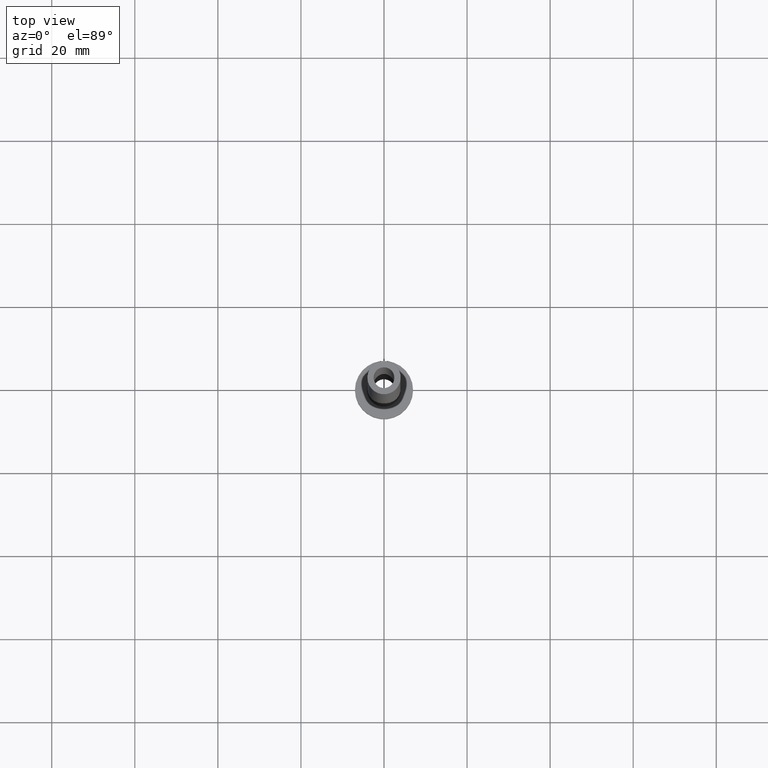
[diagram: clean part render]
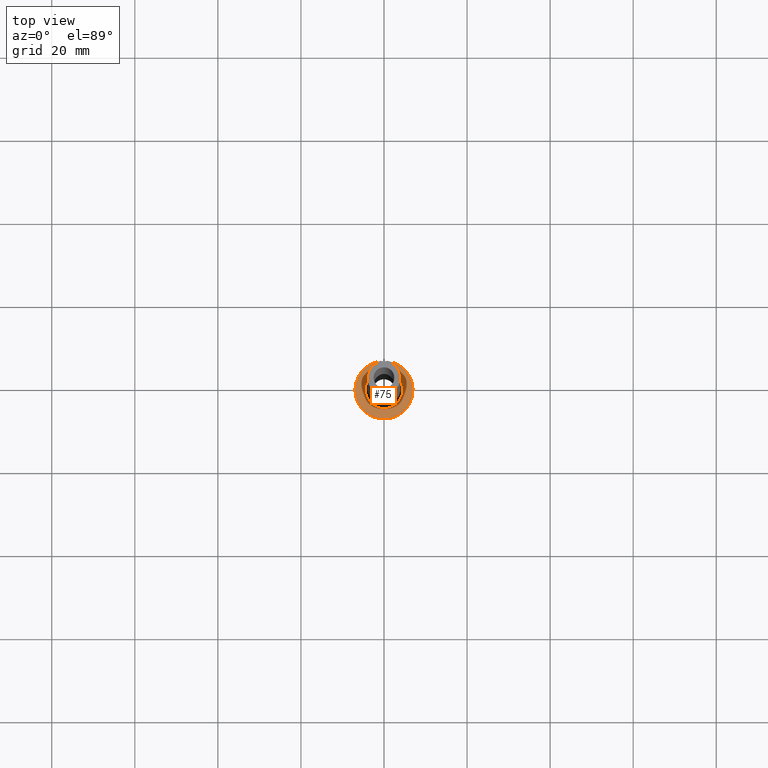
[diagram: same view with one face highlighted and labeled with its STEP entity id]
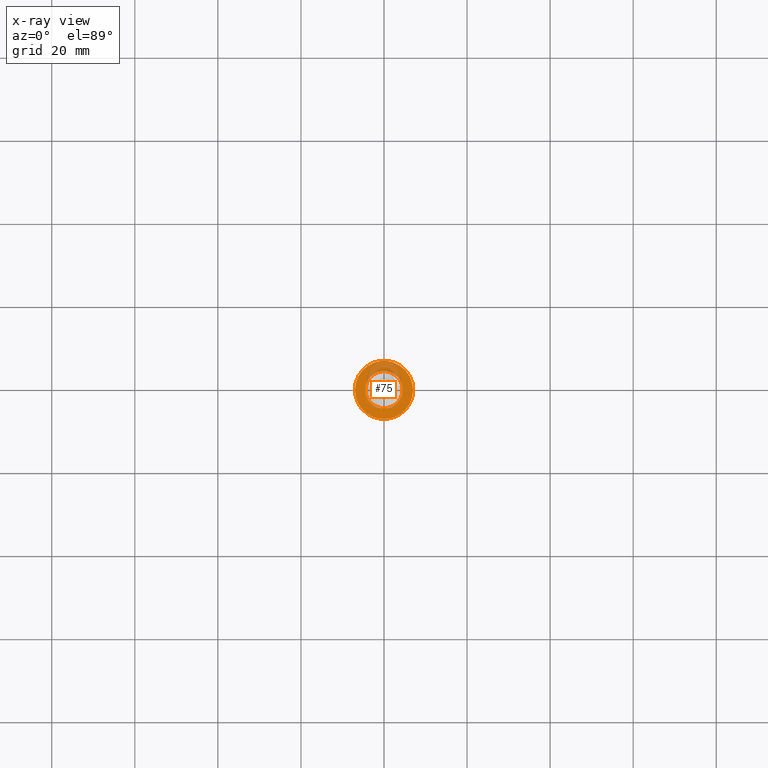
[diagram: x-ray of the same camera — body ghosted, the highlighted face saturated]
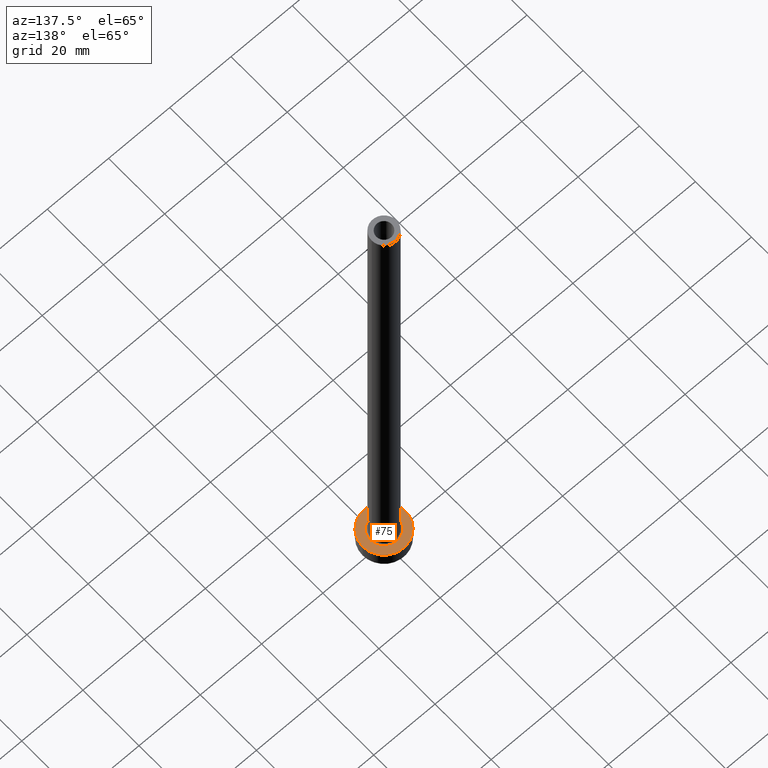
[diagram: same view with one face highlighted and labeled with its STEP entity id]
A machine part, top view. The second image highlights one B-rep face of the part: STEP entity #75.
The next image is the same camera in x-ray: the body ghosted, the highlighted face saturated — about 20% of this face is hidden behind the body in this view.
A second angle (auxiliary view) of the same face is appended — the face is thin or edge-on in the first view.
In plain terms, the highlighted planar face has unit normal (0, 0, 1).
Its self-contained STEP definition (entity closure, byte-faithful):
#2 = CIRCLE ( 'NONE', #38, 7.000000000000000000 ) ;
#9 = FACE_OUTER_BOUND ( 'NONE', #154, .T. ) ;
#12 = CARTESIAN_POINT ( 'NONE',  ( -4.500000000000000888, 5.510910596163088569E-16, 5.000000000000002665 ) ) ;
#38 = AXIS2_PLACEMENT_3D ( 'NONE', #341, #165, #407 ) ;
#48 = EDGE_CURVE ( 'NONE', #109, #99, #416, .T. ) ;
#49 = CARTESIAN_POINT ( 'NONE',  ( 4.500000000000000888, 0.000000000000000000, 5.000000000000002665 ) ) ;
#60 = EDGE_CURVE ( 'NONE', #74, #80, #2, .T. ) ;
#62 = CARTESIAN_POINT ( 'NONE',  ( 0.000000000000000000, 0.000000000000000000, 5.000000000000000000 ) ) ;
#74 = VERTEX_POINT ( 'NONE', #307 ) ;
#75 = ADVANCED_FACE ( 'NONE', ( #264, #9 ), #78, .T. ) ;
#78 = PLANE ( 'NONE',  #309 ) ;
#80 = VERTEX_POINT ( 'NONE', #89 ) ;
#87 = DIRECTION ( 'NONE',  ( 0.000000000000000000, 0.000000000000000000, 1.000000000000000000 ) ) ;
#89 = CARTESIAN_POINT ( 'NONE',  ( -7.000000000000000000, 0.000000000000000000, 5.000000000000000000 ) ) ;
#98 = CIRCLE ( 'NONE', #189, 4.500000000000000888 ) ;
#99 = VERTEX_POINT ( 'NONE', #12 ) ;
#103 = CIRCLE ( 'NONE', #368, 7.000000000000000000 ) ;
#109 = VERTEX_POINT ( 'NONE', #49 ) ;
#112 = DIRECTION ( 'NONE',  ( 1.000000000000000000, 0.000000000000000000, 0.000000000000000000 ) ) ;
#125 = CARTESIAN_POINT ( 'NONE',  ( 0.000000000000000000, 0.000000000000000000, 5.000000000000000000 ) ) ;
#154 = EDGE_LOOP ( 'NONE', ( #361, #396 ) ) ;
#158 = DIRECTION ( 'NONE',  ( 1.000000000000000000, 0.000000000000000000, -0.000000000000000000 ) ) ;
#165 = DIRECTION ( 'NONE',  ( 0.000000000000000000, 0.000000000000000000, 1.000000000000000000 ) ) ;
#189 = AXIS2_PLACEMENT_3D ( 'NONE', #62, #251, #112 ) ;
#190 = EDGE_CURVE ( 'NONE', #80, #74, #103, .T. ) ;
#191 = ORIENTED_EDGE ( 'NONE', *, *, #48, .T. ) ;
#229 = AXIS2_PLACEMENT_3D ( 'NONE', #271, #234, #339 ) ;
#234 = DIRECTION ( 'NONE',  ( -0.000000000000000000, -0.000000000000000000, -1.000000000000000000 ) ) ;
#240 = CARTESIAN_POINT ( 'NONE',  ( 0.000000000000000000, 0.000000000000000000, 5.000000000000000000 ) ) ;
#251 = DIRECTION ( 'NONE',  ( -0.000000000000000000, -0.000000000000000000, -1.000000000000000000 ) ) ;
#264 = FACE_BOUND ( 'NONE', #329, .T. ) ;
#271 = CARTESIAN_POINT ( 'NONE',  ( 0.000000000000000000, 0.000000000000000000, 5.000000000000000000 ) ) ;
#277 = DIRECTION ( 'NONE',  ( 1.000000000000000000, 0.000000000000000000, 0.000000000000000000 ) ) ;
#279 = ORIENTED_EDGE ( 'NONE', *, *, #362, .T. ) ;
#307 = CARTESIAN_POINT ( 'NONE',  ( 7.000000000000000000, 8.572527594031473190E-16, 5.000000000000000000 ) ) ;
#309 = AXIS2_PLACEMENT_3D ( 'NONE', #125, #87, #158 ) ;
#329 = EDGE_LOOP ( 'NONE', ( #191, #279 ) ) ;
#339 = DIRECTION ( 'NONE',  ( 1.000000000000000000, 0.000000000000000000, 0.000000000000000000 ) ) ;
#341 = CARTESIAN_POINT ( 'NONE',  ( 0.000000000000000000, 0.000000000000000000, 5.000000000000000000 ) ) ;
#361 = ORIENTED_EDGE ( 'NONE', *, *, #190, .T. ) ;
#362 = EDGE_CURVE ( 'NONE', #99, #109, #98, .T. ) ;
#368 = AXIS2_PLACEMENT_3D ( 'NONE', #240, #411, #277 ) ;
#396 = ORIENTED_EDGE ( 'NONE', *, *, #60, .T. ) ;
#407 = DIRECTION ( 'NONE',  ( 1.000000000000000000, 0.000000000000000000, 0.000000000000000000 ) ) ;
#411 = DIRECTION ( 'NONE',  ( 0.000000000000000000, 0.000000000000000000, 1.000000000000000000 ) ) ;
#416 = CIRCLE ( 'NONE', #229, 4.500000000000000888 ) ;